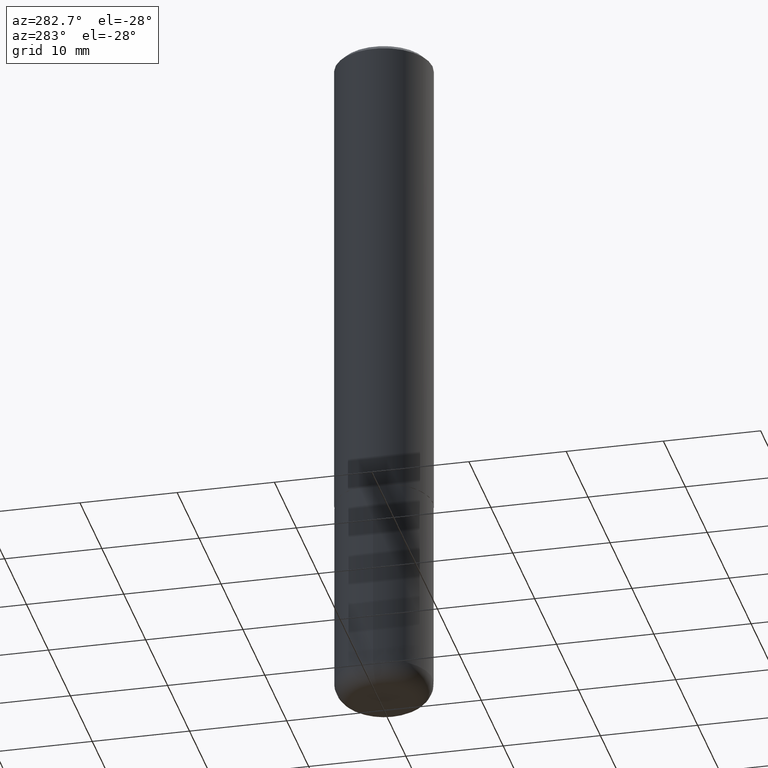
[diagram: clean part render]
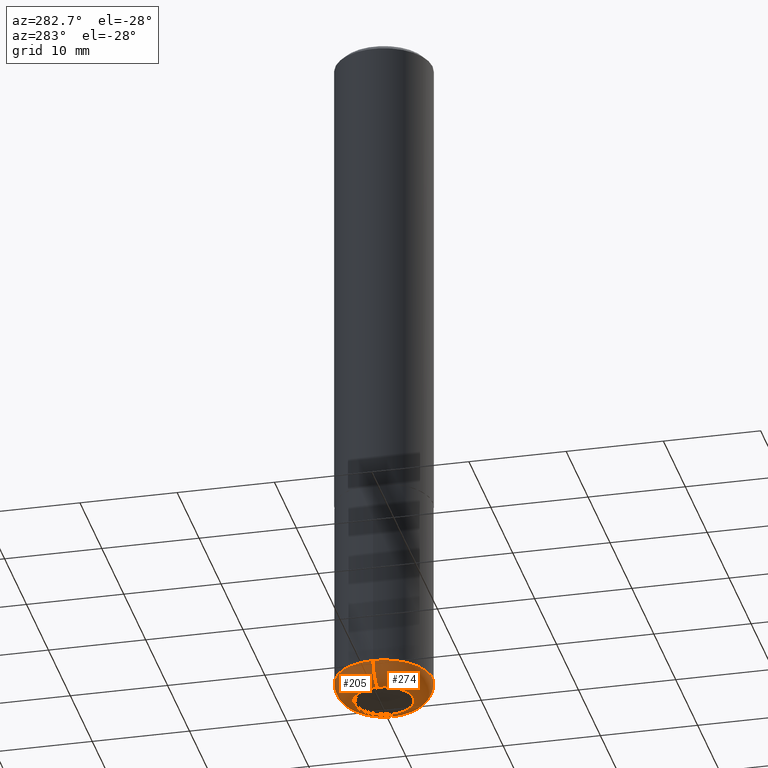
[diagram: same view with one multi-face feature highlighted, each face labeled with its STEP entity id]
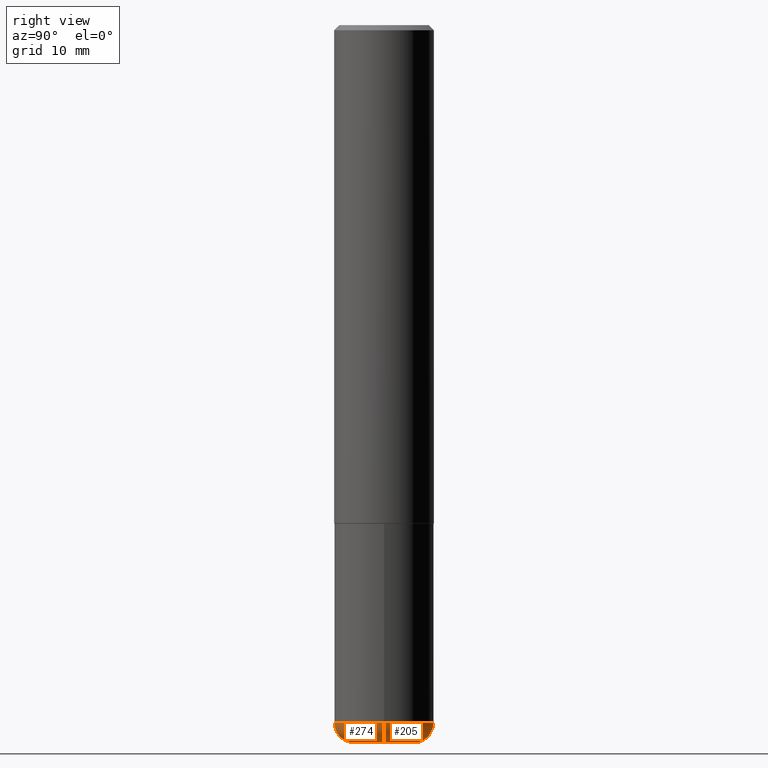
[diagram: same view with one multi-face feature highlighted, each face labeled with its STEP entity id]
A machine part, auxiliary view. The highlighted faces form ONE feature: a constant-radius fillet chain: 2 tangent blend faces with common blend radius 1.999 mm. The faces share edges in the B-rep.
A second angle (right view) of the same feature is appended — it is thin or edge-on in the first view.
Their STEP definitions:
[1] entity #274 (Torus):
#2 = VERTEX_POINT ( 'NONE', #366 ) ;
#14 = DIRECTION ( 'NONE',  ( -2.445468806185136597E-29, 3.491481338843145583E-15, 1.000000000000000000 ) ) ;
#18 = DIRECTION ( 'NONE',  ( -2.445468806185136597E-29, 3.491481338843145583E-15, 1.000000000000000000 ) ) ;
#20 = CARTESIAN_POINT ( 'NONE',  ( -0.1181500000000000050, -8.782667179417266182E-15, -2.755900000000000016 ) ) ;
#21 = EDGE_LOOP ( 'NONE', ( #63, #65, #101, #384 ) ) ;
#52 = CARTESIAN_POINT ( 'NONE',  ( 6.739467482965618232E-29, -9.622173421717824390E-15, -2.755900000000000016 ) ) ;
#63 = ORIENTED_EDGE ( 'NONE', *, *, #232, .F. ) ;
#65 = ORIENTED_EDGE ( 'NONE', *, *, #394, .T. ) ;
#88 = CARTESIAN_POINT ( 'NONE',  ( 6.739467482965618232E-29, -9.622173421717824390E-15, -2.755900000000000016 ) ) ;
#101 = ORIENTED_EDGE ( 'NONE', *, *, #268, .T. ) ;
#119 = DIRECTION ( 'NONE',  ( 1.000000000000000000, -6.982962677686270655E-15, 4.883557194083114022E-29 ) ) ;
#150 = CIRCLE ( 'NONE', #160, 0.07869999999999993667 ) ;
#160 = AXIS2_PLACEMENT_3D ( 'NONE', #283, #312, #222 ) ;
#192 = FACE_OUTER_BOUND ( 'NONE', #21, .T. ) ;
#195 = DIRECTION ( 'NONE',  ( 1.000000000000000000, -6.982962677686269866E-15, 0.000000000000000000 ) ) ;
#210 = EDGE_CURVE ( 'NONE', #418, #361, #272, .T. ) ;
#211 = TOROIDAL_SURFACE ( 'NONE', #280, 0.1181500000000000050, 0.07869999999999993667 ) ;
#220 = CARTESIAN_POINT ( 'NONE',  ( 0.1181500000000000189, -1.072199004345341266E-14, -2.834600000000000009 ) ) ;
#222 = DIRECTION ( 'NONE',  ( 1.000000000000000000, -6.982962677686275388E-15, 0.000000000000000000 ) ) ;
#232 = EDGE_CURVE ( 'NONE', #2, #418, #364, .T. ) ;
#248 = AXIS2_PLACEMENT_3D ( 'NONE', #88, #18, #195 ) ;
#267 = CIRCLE ( 'NONE', #326, 0.1181500000000000189 ) ;
#268 = EDGE_CURVE ( 'NONE', #293, #361, #150, .T. ) ;
#272 = CIRCLE ( 'NONE', #248, 0.1968499999999999694 ) ;
#274 = ADVANCED_FACE ( 'NONE', ( #192 ), #211, .T. ) ;
#278 = CARTESIAN_POINT ( 'NONE',  ( 0.1968499999999999694, -1.099676962482036600E-14, -2.755900000000000016 ) ) ;
#280 = AXIS2_PLACEMENT_3D ( 'NONE', #52, #14, #119 ) ;
#283 = CARTESIAN_POINT ( 'NONE',  ( 0.1181500000000000050, -1.044721046208645774E-14, -2.755900000000000016 ) ) ;
#285 = DIRECTION ( 'NONE',  ( -1.000000000000000000, 7.105427357600997914E-15, 0.000000000000000000 ) ) ;
#293 = VERTEX_POINT ( 'NONE', #220 ) ;
#301 = CARTESIAN_POINT ( 'NONE',  ( -0.1968499999999999694, -8.223470046374067391E-15, -2.755900000000000016 ) ) ;
#312 = DIRECTION ( 'NONE',  ( -6.982962677686266711E-15, -1.000000000000000000, 3.491481338843145583E-15 ) ) ;
#326 = AXIS2_PLACEMENT_3D ( 'NONE', #334, #362, #370 ) ;
#334 = CARTESIAN_POINT ( 'NONE',  ( 6.931925878012387517E-29, -9.896953003084780885E-15, -2.834600000000000009 ) ) ;
#339 = AXIS2_PLACEMENT_3D ( 'NONE', #20, #406, #285 ) ;
#361 = VERTEX_POINT ( 'NONE', #278 ) ;
#362 = DIRECTION ( 'NONE',  ( -2.445468806185136597E-29, 3.491481338843145583E-15, 1.000000000000000000 ) ) ;
#364 = CIRCLE ( 'NONE', #339, 0.07869999999999993667 ) ;
#366 = CARTESIAN_POINT ( 'NONE',  ( -0.1181500000000000189, -8.640458403579145034E-15, -2.834600000000000009 ) ) ;
#370 = DIRECTION ( 'NONE',  ( 1.000000000000000000, -6.982962677686265922E-15, 0.000000000000000000 ) ) ;
#384 = ORIENTED_EDGE ( 'NONE', *, *, #210, .F. ) ;
#394 = EDGE_CURVE ( 'NONE', #2, #293, #267, .T. ) ;
#406 = DIRECTION ( 'NONE',  ( 7.105427357601001859E-15, 1.000000000000000000, -3.491481338843145583E-15 ) ) ;
#418 = VERTEX_POINT ( 'NONE', #301 ) ;
[2] entity #205 (Torus):
#2 = VERTEX_POINT ( 'NONE', #366 ) ;
#11 = AXIS2_PLACEMENT_3D ( 'NONE', #319, #57, #378 ) ;
#16 = AXIS2_PLACEMENT_3D ( 'NONE', #310, #397, #372 ) ;
#20 = CARTESIAN_POINT ( 'NONE',  ( -0.1181500000000000050, -8.782667179417266182E-15, -2.755900000000000016 ) ) ;
#57 = DIRECTION ( 'NONE',  ( -2.445468806185136597E-29, 3.491481338843145583E-15, 1.000000000000000000 ) ) ;
#123 = CIRCLE ( 'NONE', #183, 0.1968499999999999694 ) ;
#127 = ORIENTED_EDGE ( 'NONE', *, *, #268, .F. ) ;
#150 = CIRCLE ( 'NONE', #160, 0.07869999999999993667 ) ;
#154 = EDGE_CURVE ( 'NONE', #361, #418, #123, .T. ) ;
#160 = AXIS2_PLACEMENT_3D ( 'NONE', #283, #312, #222 ) ;
#183 = AXIS2_PLACEMENT_3D ( 'NONE', #407, #221, #190 ) ;
#190 = DIRECTION ( 'NONE',  ( 1.000000000000000000, -6.982962677686269866E-15, 0.000000000000000000 ) ) ;
#205 = ADVANCED_FACE ( 'NONE', ( #403 ), #332, .T. ) ;
#220 = CARTESIAN_POINT ( 'NONE',  ( 0.1181500000000000189, -1.072199004345341266E-14, -2.834600000000000009 ) ) ;
#221 = DIRECTION ( 'NONE',  ( -2.445468806185136597E-29, 3.491481338843145583E-15, 1.000000000000000000 ) ) ;
#222 = DIRECTION ( 'NONE',  ( 1.000000000000000000, -6.982962677686275388E-15, 0.000000000000000000 ) ) ;
#232 = EDGE_CURVE ( 'NONE', #2, #418, #364, .T. ) ;
#259 = EDGE_LOOP ( 'NONE', ( #270, #325, #413, #127 ) ) ;
#268 = EDGE_CURVE ( 'NONE', #293, #361, #150, .T. ) ;
#270 = ORIENTED_EDGE ( 'NONE', *, *, #323, .T. ) ;
#278 = CARTESIAN_POINT ( 'NONE',  ( 0.1968499999999999694, -1.099676962482036600E-14, -2.755900000000000016 ) ) ;
#283 = CARTESIAN_POINT ( 'NONE',  ( 0.1181500000000000050, -1.044721046208645774E-14, -2.755900000000000016 ) ) ;
#285 = DIRECTION ( 'NONE',  ( -1.000000000000000000, 7.105427357600997914E-15, 0.000000000000000000 ) ) ;
#293 = VERTEX_POINT ( 'NONE', #220 ) ;
#294 = CIRCLE ( 'NONE', #16, 0.1181500000000000189 ) ;
#301 = CARTESIAN_POINT ( 'NONE',  ( -0.1968499999999999694, -8.223470046374067391E-15, -2.755900000000000016 ) ) ;
#310 = CARTESIAN_POINT ( 'NONE',  ( 6.931925878012387517E-29, -9.896953003084780885E-15, -2.834600000000000009 ) ) ;
#312 = DIRECTION ( 'NONE',  ( -6.982962677686266711E-15, -1.000000000000000000, 3.491481338843145583E-15 ) ) ;
#319 = CARTESIAN_POINT ( 'NONE',  ( 6.739467482965618232E-29, -9.622173421717824390E-15, -2.755900000000000016 ) ) ;
#323 = EDGE_CURVE ( 'NONE', #293, #2, #294, .T. ) ;
#325 = ORIENTED_EDGE ( 'NONE', *, *, #232, .T. ) ;
#332 = TOROIDAL_SURFACE ( 'NONE', #11, 0.1181500000000000050, 0.07869999999999993667 ) ;
#339 = AXIS2_PLACEMENT_3D ( 'NONE', #20, #406, #285 ) ;
#361 = VERTEX_POINT ( 'NONE', #278 ) ;
#364 = CIRCLE ( 'NONE', #339, 0.07869999999999993667 ) ;
#366 = CARTESIAN_POINT ( 'NONE',  ( -0.1181500000000000189, -8.640458403579145034E-15, -2.834600000000000009 ) ) ;
#372 = DIRECTION ( 'NONE',  ( 1.000000000000000000, -6.982962677686265922E-15, 0.000000000000000000 ) ) ;
#378 = DIRECTION ( 'NONE',  ( 1.000000000000000000, -6.982962677686270655E-15, 4.883557194083114022E-29 ) ) ;
#397 = DIRECTION ( 'NONE',  ( -2.445468806185136597E-29, 3.491481338843145583E-15, 1.000000000000000000 ) ) ;
#403 = FACE_OUTER_BOUND ( 'NONE', #259, .T. ) ;
#406 = DIRECTION ( 'NONE',  ( 7.105427357601001859E-15, 1.000000000000000000, -3.491481338843145583E-15 ) ) ;
#407 = CARTESIAN_POINT ( 'NONE',  ( 6.739467482965618232E-29, -9.622173421717824390E-15, -2.755900000000000016 ) ) ;
#413 = ORIENTED_EDGE ( 'NONE', *, *, #154, .F. ) ;
#418 = VERTEX_POINT ( 'NONE', #301 ) ;